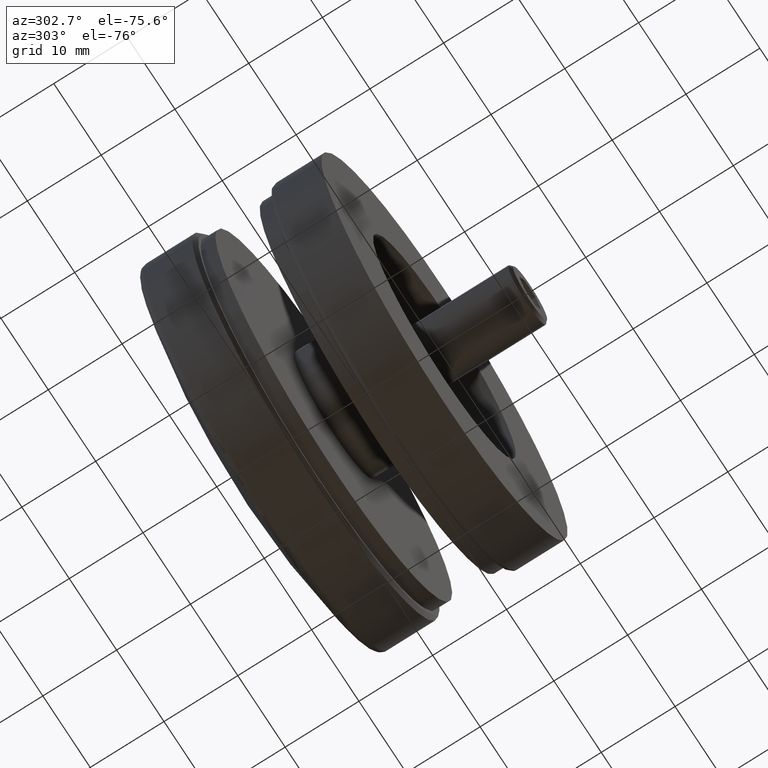
[diagram: clean part render]
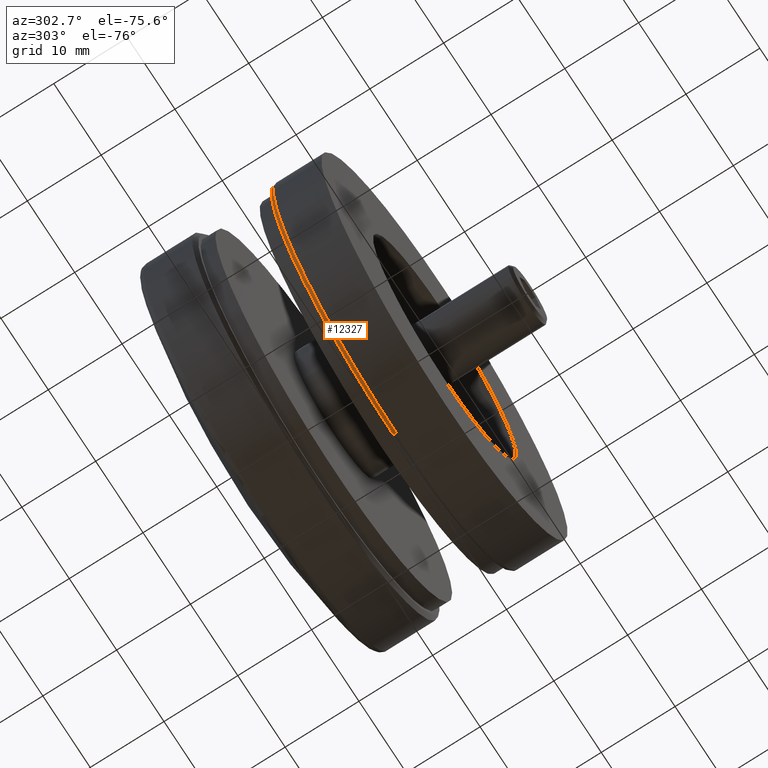
[diagram: same view with one face highlighted and labeled with its STEP entity id]
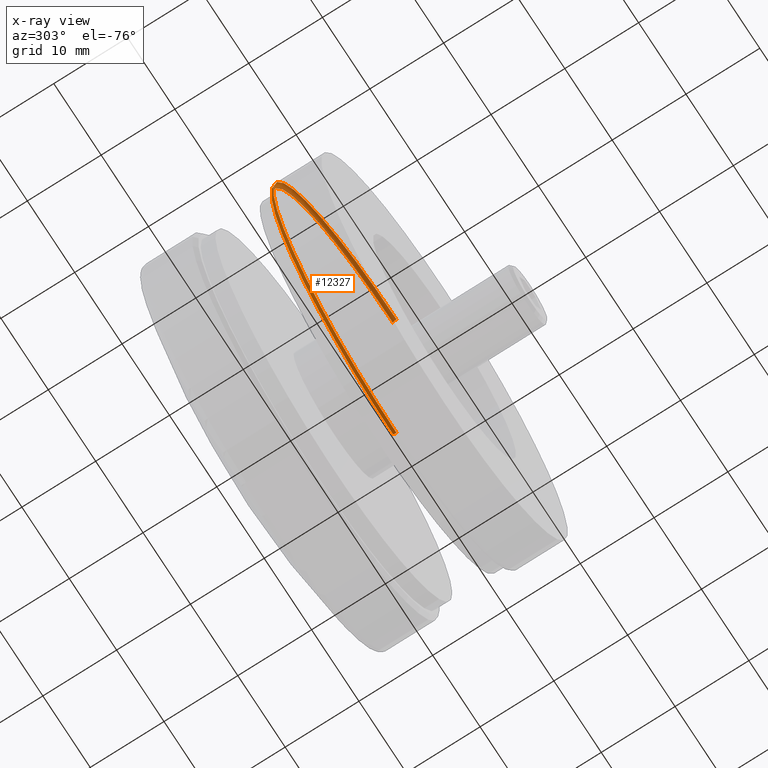
[diagram: x-ray of the same camera — body ghosted, the highlighted face saturated]
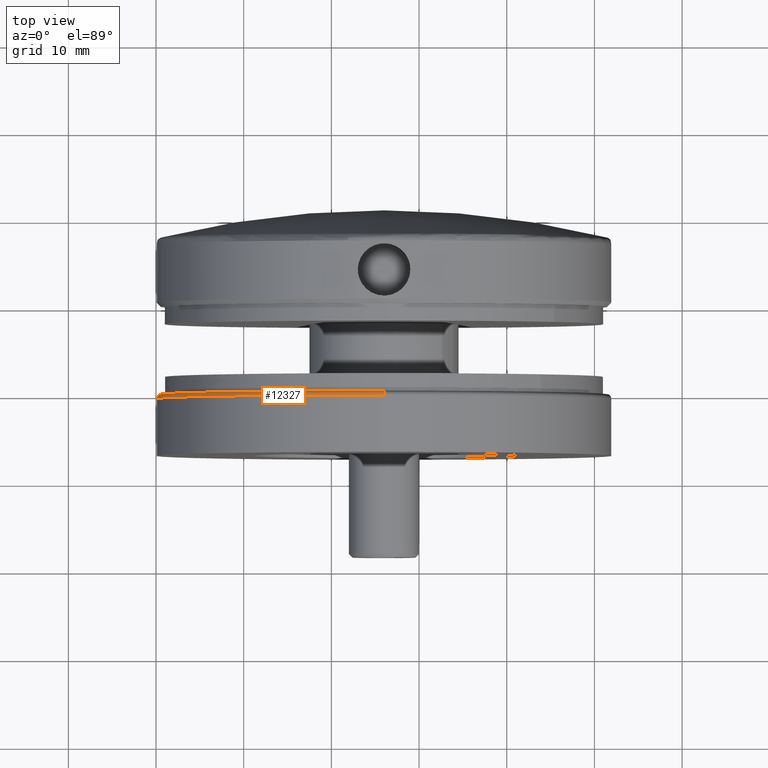
[diagram: same view with one face highlighted and labeled with its STEP entity id]
A machine part, auxiliary view. The second image highlights one B-rep face of the part: STEP entity #12327.
The next image is the same camera in x-ray: the body ghosted, the highlighted face saturated — about 47% of this face is hidden behind the body in this view.
A second angle (top view) of the same face is appended — the face is thin or edge-on in the first view.
In plain terms, the highlighted toroidal blend (fillet) surface has major radius 25.5 mm and minor (blend) radius 0.5 mm.
Its self-contained STEP definition (entity closure, byte-faithful):
#224 = AXIS2_PLACEMENT_3D ( 'NONE', #4856, #12891, #1463 ) ;
#243 = CIRCLE ( 'NONE', #224, 0.5000000000000004400 ) ;
#450 = CARTESIAN_POINT ( 'NONE',  ( 3.153465507804434800E-015, 0.0000000000000000000, -25.50000000000000400 ) ) ;
#1028 = EDGE_CURVE ( 'NONE', #12321, #3278, #243, .T. ) ;
#1463 = DIRECTION ( 'NONE',  ( 1.224646799147349500E-016, 0.0000000000000000000, -1.000000000000000000 ) ) ;
#1529 = EDGE_LOOP ( 'NONE', ( #8544, #7405, #13328, #9825 ) ) ;
#1639 = DIRECTION ( 'NONE',  ( 0.0000000000000000000, 0.0000000000000000000, 1.000000000000000000 ) ) ;
#1843 = CARTESIAN_POINT ( 'NONE',  ( 0.0000000000000000000, 0.0000000000000000000, 0.0000000000000000000 ) ) ;
#2147 = CIRCLE ( 'NONE', #9482, 26.00000000000000400 ) ;
#2164 = CIRCLE ( 'NONE', #8162, 25.50000000000000400 ) ;
#2179 = FACE_OUTER_BOUND ( 'NONE', #1529, .T. ) ;
#2738 = DIRECTION ( 'NONE',  ( 0.0000000000000000000, 1.000000000000000000, 0.0000000000000000000 ) ) ;
#2907 = TOROIDAL_SURFACE ( 'NONE', #10336, 25.50000000000000400, 0.5000000000000000000 ) ;
#3152 = CARTESIAN_POINT ( 'NONE',  ( 0.0000000000000000000, 0.4999999999999995600, 25.50000000000000400 ) ) ;
#3278 = VERTEX_POINT ( 'NONE', #6685 ) ;
#4321 = VERTEX_POINT ( 'NONE', #11604 ) ;
#4856 = CARTESIAN_POINT ( 'NONE',  ( 3.122849337825751000E-015, 0.4999999999999995600, -25.50000000000000400 ) ) ;
#5192 = CARTESIAN_POINT ( 'NONE',  ( 0.0000000000000000000, 0.4999999999999995600, 0.0000000000000000000 ) ) ;
#6295 = CARTESIAN_POINT ( 'NONE',  ( 0.0000000000000000000, 0.4999999999999995600, 0.0000000000000000000 ) ) ;
#6302 = DIRECTION ( 'NONE',  ( -0.0000000000000000000, -1.000000000000000000, -0.0000000000000000000 ) ) ;
#6555 = VERTEX_POINT ( 'NONE', #12865 ) ;
#6685 = CARTESIAN_POINT ( 'NONE',  ( 0.0000000000000000000, 0.4999999999999995600, -26.00000000000000400 ) ) ;
#6905 = AXIS2_PLACEMENT_3D ( 'NONE', #3152, #7659, #11228 ) ;
#7374 = DIRECTION ( 'NONE',  ( 0.0000000000000000000, 1.000000000000000000, 0.0000000000000000000 ) ) ;
#7405 = ORIENTED_EDGE ( 'NONE', *, *, #13321, .F. ) ;
#7659 = DIRECTION ( 'NONE',  ( -1.000000000000000000, 0.0000000000000000000, 0.0000000000000000000 ) ) ;
#8162 = AXIS2_PLACEMENT_3D ( 'NONE', #1843, #6302, #13307 ) ;
#8544 = ORIENTED_EDGE ( 'NONE', *, *, #1028, .F. ) ;
#9482 = AXIS2_PLACEMENT_3D ( 'NONE', #5192, #7374, #13225 ) ;
#9825 = ORIENTED_EDGE ( 'NONE', *, *, #13816, .F. ) ;
#9877 = CIRCLE ( 'NONE', #6905, 0.5000000000000004400 ) ;
#10336 = AXIS2_PLACEMENT_3D ( 'NONE', #6295, #2738, #1639 ) ;
#11228 = DIRECTION ( 'NONE',  ( 0.0000000000000000000, 0.0000000000000000000, 1.000000000000000000 ) ) ;
#11604 = CARTESIAN_POINT ( 'NONE',  ( 0.0000000000000000000, 0.0000000000000000000, 25.50000000000000400 ) ) ;
#12321 = VERTEX_POINT ( 'NONE', #450 ) ;
#12327 = ADVANCED_FACE ( 'NONE', ( #2179 ), #2907, .T. ) ;
#12865 = CARTESIAN_POINT ( 'NONE',  ( 3.184081677783118600E-015, 0.4999999999999995600, 26.00000000000000400 ) ) ;
#12891 = DIRECTION ( 'NONE',  ( 1.000000000000000000, -0.0000000000000000000, 1.224646799147353200E-016 ) ) ;
#13225 = DIRECTION ( 'NONE',  ( 0.0000000000000000000, 0.0000000000000000000, 1.000000000000000000 ) ) ;
#13307 = DIRECTION ( 'NONE',  ( 0.0000000000000000000, 0.0000000000000000000, 1.000000000000000000 ) ) ;
#13321 = EDGE_CURVE ( 'NONE', #4321, #12321, #2164, .T. ) ;
#13328 = ORIENTED_EDGE ( 'NONE', *, *, #13523, .T. ) ;
#13523 = EDGE_CURVE ( 'NONE', #4321, #6555, #9877, .T. ) ;
#13816 = EDGE_CURVE ( 'NONE', #3278, #6555, #2147, .T. ) ;